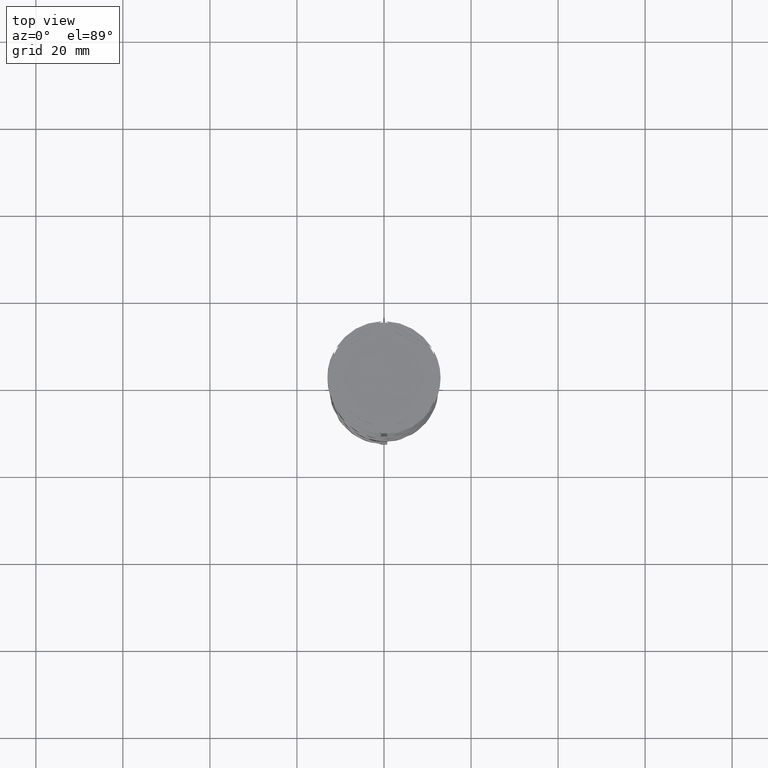
[diagram: clean part render]
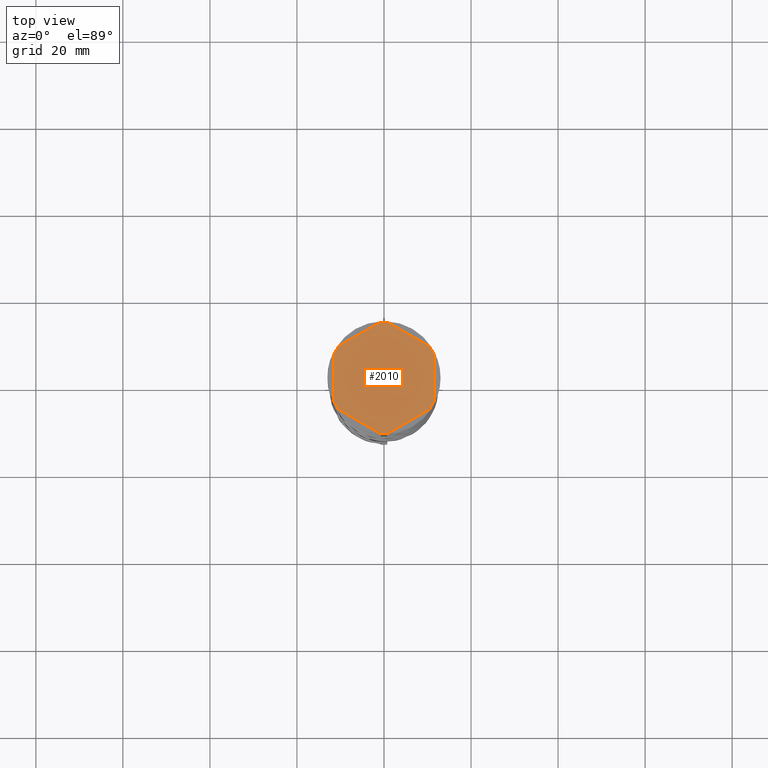
[diagram: same view with one face highlighted and labeled with its STEP entity id]
A machine part, top view. The second image highlights one B-rep face of the part: STEP entity #2010.
In plain terms, the highlighted planar face has unit normal (0, 0, 1).
Its self-contained STEP definition (entity closure, byte-faithful):
#6 = LINE ( 'NONE', #2559, #3145 ) ;
#34 = CARTESIAN_POINT ( 'NONE',  ( 5.612359739892467248E-18, -13.27905619136138959, -1.000000000000000000 ) ) ;
#46 = VERTEX_POINT ( 'NONE', #233 ) ;
#63 = AXIS2_PLACEMENT_3D ( 'NONE', #3797, #3757, #294 ) ;
#97 = EDGE_CURVE ( 'NONE', #1043, #3855, #4139, .T. ) ;
#104 = CARTESIAN_POINT ( 'NONE',  ( 11.49999999999999822, 5.388877434122992582, -1.000000000000000000 ) ) ;
#111 = VECTOR ( 'NONE', #1644, 999.9999999999998863 ) ;
#124 = VECTOR ( 'NONE', #647, 1000.000000000000000 ) ;
#182 = LINE ( 'NONE', #3962, #2127 ) ;
#189 = VECTOR ( 'NONE', #1556, 1000.000000000000000 ) ;
#208 = DIRECTION ( 'NONE',  ( 1.000000000000000000, 0.000000000000000000, 0.000000000000000000 ) ) ;
#218 = DIRECTION ( 'NONE',  ( 1.000000000000000000, -1.776356839400250465E-14, 0.000000000000000000 ) ) ;
#233 = CARTESIAN_POINT ( 'NONE',  ( -10.41690475583121689, 7.264853426459546348, -1.000000000000000000 ) ) ;
#252 = CARTESIAN_POINT ( 'NONE',  ( 10.41690475583121156, 7.264853426459550789, -1.000000000000000000 ) ) ;
#260 = AXIS2_PLACEMENT_3D ( 'NONE', #2072, #1462, #499 ) ;
#280 = VERTEX_POINT ( 'NONE', #1459 ) ;
#291 = CARTESIAN_POINT ( 'NONE',  ( 0.000000000000000000, 0.000000000000000000, -1.000000000000000000 ) ) ;
#293 = ORIENTED_EDGE ( 'NONE', *, *, #2872, .T. ) ;
#294 = DIRECTION ( 'NONE',  ( 1.000000000000000000, 7.105427357601001859E-15, 0.000000000000000000 ) ) ;
#295 = EDGE_LOOP ( 'NONE', ( #2180, #711 ) ) ;
#304 = CARTESIAN_POINT ( 'NONE',  ( -8.089454172900135021, 7.453907108661106840, -1.000000000000000888 ) ) ;
#392 = ORIENTED_EDGE ( 'NONE', *, *, #3455, .F. ) ;
#429 = ORIENTED_EDGE ( 'NONE', *, *, #1276, .F. ) ;
#449 = CIRCLE ( 'NONE', #518, 11.00000000000000000 ) ;
#470 = DIRECTION ( 'NONE',  ( -0.8660254037844384856, 0.5000000000000002220, 0.000000000000000000 ) ) ;
#481 = ORIENTED_EDGE ( 'NONE', *, *, #1780, .F. ) ;
#483 = EDGE_CURVE ( 'NONE', #4098, #874, #1342, .T. ) ;
#491 = AXIS2_PLACEMENT_3D ( 'NONE', #3613, #1410, #2696 ) ;
#499 = DIRECTION ( 'NONE',  ( 1.000000000000000000, 0.000000000000000000, 0.000000000000000000 ) ) ;
#505 = EDGE_LOOP ( 'NONE', ( #1377, #1454 ) ) ;
#518 = AXIS2_PLACEMENT_3D ( 'NONE', #1490, #2148, #1847 ) ;
#551 = CARTESIAN_POINT ( 'NONE',  ( -10.49999999999999822, 6.062177826491068622, -1.000000000000000888 ) ) ;
#571 = CARTESIAN_POINT ( 'NONE',  ( -11.50000000000000000, -6.639528095680696573, -1.000000000000000000 ) ) ;
#578 = CARTESIAN_POINT ( 'NONE',  ( -11.00000000000000000, 0.000000000000000000, -1.000000000000000000 ) ) ;
#615 = DIRECTION ( 'NONE',  ( -1.430775808321104180E-16, -1.000000000000000000, 0.000000000000000000 ) ) ;
#622 = CARTESIAN_POINT ( 'NONE',  ( 10.49999999999999467, 3.278719262151012170, -1.000000000000000888 ) ) ;
#647 = DIRECTION ( 'NONE',  ( 0.000000000000000000, -1.000000000000000000, 0.000000000000000000 ) ) ;
#662 = CIRCLE ( 'NONE', #1190, 11.00000000000000000 ) ;
#666 = EDGE_CURVE ( 'NONE', #3925, #46, #2332, .T. ) ;
#691 = VERTEX_POINT ( 'NONE', #1042 ) ;
#711 = ORIENTED_EDGE ( 'NONE', *, *, #962, .F. ) ;
#721 = CARTESIAN_POINT ( 'NONE',  ( 10.49999999999999467, 6.062177826491072175, -1.000000000000000888 ) ) ;
#732 = CARTESIAN_POINT ( 'NONE',  ( 0.000000000000000000, 13.27905619136138959, -1.000000000000000000 ) ) ;
#761 = DIRECTION ( 'NONE',  ( 0.000000000000000000, 0.000000000000000000, 1.000000000000000000 ) ) ;
#787 = DIRECTION ( 'NONE',  ( -0.000000000000000000, -0.000000000000000000, -1.000000000000000000 ) ) ;
#802 = DIRECTION ( 'NONE',  ( 0.000000000000000000, 0.000000000000000000, 1.000000000000000000 ) ) ;
#823 = DIRECTION ( 'NONE',  ( -0.8660254037844388186, 0.4999999999999997224, 0.000000000000000000 ) ) ;
#831 = VERTEX_POINT ( 'NONE', #2753 ) ;
#860 = VERTEX_POINT ( 'NONE', #2074 ) ;
#874 = VERTEX_POINT ( 'NONE', #104 ) ;
#927 = AXIS2_PLACEMENT_3D ( 'NONE', #1835, #1814, #1902 ) ;
#933 = CARTESIAN_POINT ( 'NONE',  ( 0.000000000000000000, 0.000000000000000000, -1.000000000000000000 ) ) ;
#962 = EDGE_CURVE ( 'NONE', #831, #3766, #2300, .T. ) ;
#966 = ORIENTED_EDGE ( 'NONE', *, *, #483, .T. ) ;
#986 = ORIENTED_EDGE ( 'NONE', *, *, #1450, .F. ) ;
#1019 = CARTESIAN_POINT ( 'NONE',  ( 11.49999999999999822, -5.388877434122996135, -1.000000000000000000 ) ) ;
#1035 = VECTOR ( 'NONE', #2271, 1000.000000000000000 ) ;
#1042 = CARTESIAN_POINT ( 'NONE',  ( 1.083095244168781557, 12.65373086058254160, -1.000000000000000000 ) ) ;
#1043 = VERTEX_POINT ( 'NONE', #3554 ) ;
#1050 = CARTESIAN_POINT ( 'NONE',  ( 11.50000000000000000, 6.639528095680698350, -1.000000000000000000 ) ) ;
#1056 = AXIS2_PLACEMENT_3D ( 'NONE', #4087, #2164, #218 ) ;
#1068 = CARTESIAN_POINT ( 'NONE',  ( -10.49999999999999822, -6.062177826491068622, -1.000000000000000888 ) ) ;
#1071 = CARTESIAN_POINT ( 'NONE',  ( -11.50000000000000000, -5.388877434122992582, -1.000000000000000000 ) ) ;
#1091 = CARTESIAN_POINT ( 'NONE',  ( 10.49999999999999467, -3.278719262151014835, -1.000000000000000888 ) ) ;
#1107 = ORIENTED_EDGE ( 'NONE', *, *, #3934, .F. ) ;
#1133 = LINE ( 'NONE', #1068, #2474 ) ;
#1138 = CARTESIAN_POINT ( 'NONE',  ( 0.000000000000000000, 0.000000000000000000, -1.000000000000000000 ) ) ;
#1144 = EDGE_CURVE ( 'NONE', #2958, #691, #2762, .T. ) ;
#1190 = AXIS2_PLACEMENT_3D ( 'NONE', #2809, #2891, #3163 ) ;
#1220 = EDGE_LOOP ( 'NONE', ( #1905, #2312 ) ) ;
#1276 = EDGE_CURVE ( 'NONE', #3943, #46, #2922, .T. ) ;
#1319 = VERTEX_POINT ( 'NONE', #622 ) ;
#1342 = LINE ( 'NONE', #3232, #1035 ) ;
#1363 = VERTEX_POINT ( 'NONE', #578 ) ;
#1377 = ORIENTED_EDGE ( 'NONE', *, *, #3982, .F. ) ;
#1399 = ORIENTED_EDGE ( 'NONE', *, *, #666, .T. ) ;
#1410 = DIRECTION ( 'NONE',  ( 0.000000000000000000, 0.000000000000000000, 1.000000000000000000 ) ) ;
#1436 = CARTESIAN_POINT ( 'NONE',  ( 0.000000000000000000, 0.000000000000000000, -1.000000000000000000 ) ) ;
#1437 = VECTOR ( 'NONE', #2254, 1000.000000000000114 ) ;
#1450 = EDGE_CURVE ( 'NONE', #2153, #1466, #3108, .T. ) ;
#1454 = ORIENTED_EDGE ( 'NONE', *, *, #1681, .F. ) ;
#1459 = CARTESIAN_POINT ( 'NONE',  ( -2.410545827099876082, -10.73262637081210435, -1.000000000000000888 ) ) ;
#1462 = DIRECTION ( 'NONE',  ( 0.000000000000000000, 0.000000000000000000, 1.000000000000000000 ) ) ;
#1466 = VERTEX_POINT ( 'NONE', #1783 ) ;
#1488 = DIRECTION ( 'NONE',  ( 1.000000000000000000, 0.000000000000000000, 0.000000000000000000 ) ) ;
#1490 = CARTESIAN_POINT ( 'NONE',  ( 0.000000000000000000, 0.000000000000000000, -1.000000000000000000 ) ) ;
#1503 = EDGE_CURVE ( 'NONE', #3685, #3701, #3087, .T. ) ;
#1504 = EDGE_CURVE ( 'NONE', #1466, #1363, #449, .T. ) ;
#1510 = EDGE_LOOP ( 'NONE', ( #966, #1107, #2713, #2926, #1399, #429, #293, #392, #1825, #3048, #3426, #3329 ) ) ;
#1553 = EDGE_CURVE ( 'NONE', #1319, #1591, #3490, .T. ) ;
#1556 = DIRECTION ( 'NONE',  ( 0.000000000000000000, 1.000000000000000000, 0.000000000000000000 ) ) ;
#1564 = FACE_BOUND ( 'NONE', #1220, .T. ) ;
#1585 = FACE_BOUND ( 'NONE', #505, .T. ) ;
#1591 = VERTEX_POINT ( 'NONE', #1091 ) ;
#1617 = VERTEX_POINT ( 'NONE', #1071 ) ;
#1626 = AXIS2_PLACEMENT_3D ( 'NONE', #933, #1879, #2155 ) ;
#1644 = DIRECTION ( 'NONE',  ( 0.8660254037844387076, -0.4999999999999999445, 0.000000000000000000 ) ) ;
#1649 = DIRECTION ( 'NONE',  ( 0.8660254037844385966, 0.5000000000000001110, -0.000000000000000000 ) ) ;
#1681 = EDGE_CURVE ( 'NONE', #860, #2147, #182, .T. ) ;
#1715 = DIRECTION ( 'NONE',  ( -0.8660254037844385966, -0.5000000000000001110, 0.000000000000000000 ) ) ;
#1727 = AXIS2_PLACEMENT_3D ( 'NONE', #2196, #4142, #3160 ) ;
#1754 = DIRECTION ( 'NONE',  ( 1.000000000000000000, 0.000000000000000000, 0.000000000000000000 ) ) ;
#1780 = EDGE_CURVE ( 'NONE', #1363, #2153, #3504, .T. ) ;
#1783 = CARTESIAN_POINT ( 'NONE',  ( -10.49999999999999822, 3.278719262151000624, -1.000000000000000888 ) ) ;
#1785 = VECTOR ( 'NONE', #615, 1000.000000000000000 ) ;
#1792 = DIRECTION ( 'NONE',  ( 1.000000000000000000, 0.000000000000000000, 0.000000000000000000 ) ) ;
#1814 = DIRECTION ( 'NONE',  ( -0.000000000000000000, -0.000000000000000000, -1.000000000000000000 ) ) ;
#1816 = EDGE_CURVE ( 'NONE', #2574, #3818, #3440, .T. ) ;
#1825 = ORIENTED_EDGE ( 'NONE', *, *, #1503, .T. ) ;
#1835 = CARTESIAN_POINT ( 'NONE',  ( 0.000000000000000000, 0.000000000000000000, -1.000000000000000000 ) ) ;
#1847 = DIRECTION ( 'NONE',  ( 1.000000000000000000, 0.000000000000000000, 0.000000000000000000 ) ) ;
#1856 = FACE_BOUND ( 'NONE', #3432, .T. ) ;
#1861 = AXIS2_PLACEMENT_3D ( 'NONE', #1436, #787, #1754 ) ;
#1879 = DIRECTION ( 'NONE',  ( 0.000000000000000000, 0.000000000000000000, 1.000000000000000000 ) ) ;
#1902 = DIRECTION ( 'NONE',  ( 1.000000000000000000, 1.243449787580175325E-14, 0.000000000000000000 ) ) ;
#1905 = ORIENTED_EDGE ( 'NONE', *, *, #2714, .F. ) ;
#1931 = CIRCLE ( 'NONE', #1861, 12.69999999999999929 ) ;
#2010 = ADVANCED_FACE ( 'NONE', ( #2466, #3453, #1585, #1564, #3498, #1856, #4079 ), #2783, .T. ) ;
#2026 = AXIS2_PLACEMENT_3D ( 'NONE', #3346, #761, #1792 ) ;
#2039 = ORIENTED_EDGE ( 'NONE', *, *, #1816, .F. ) ;
#2067 = CIRCLE ( 'NONE', #1056, 12.69999999999999929 ) ;
#2072 = CARTESIAN_POINT ( 'NONE',  ( 0.000000000000000000, 0.000000000000000000, -1.000000000000000000 ) ) ;
#2074 = CARTESIAN_POINT ( 'NONE',  ( 8.089454172900135021, -7.453907108661109504, -1.000000000000000888 ) ) ;
#2127 = VECTOR ( 'NONE', #2671, 999.9999999999998863 ) ;
#2147 = VERTEX_POINT ( 'NONE', #2711 ) ;
#2148 = DIRECTION ( 'NONE',  ( 0.000000000000000000, 0.000000000000000000, 1.000000000000000000 ) ) ;
#2153 = VERTEX_POINT ( 'NONE', #3312 ) ;
#2154 = DIRECTION ( 'NONE',  ( 1.000000000000000000, 0.000000000000000000, 0.000000000000000000 ) ) ;
#2155 = DIRECTION ( 'NONE',  ( 1.000000000000000000, 0.000000000000000000, -0.000000000000000000 ) ) ;
#2164 = DIRECTION ( 'NONE',  ( -0.000000000000000000, -0.000000000000000000, -1.000000000000000000 ) ) ;
#2180 = ORIENTED_EDGE ( 'NONE', *, *, #2895, .F. ) ;
#2190 = AXIS2_PLACEMENT_3D ( 'NONE', #291, #4099, #2154 ) ;
#2196 = CARTESIAN_POINT ( 'NONE',  ( 0.000000000000000000, 0.000000000000000000, -1.000000000000000000 ) ) ;
#2254 = DIRECTION ( 'NONE',  ( 0.8660254037844385966, 0.4999999999999999445, 0.000000000000000000 ) ) ;
#2260 = ORIENTED_EDGE ( 'NONE', *, *, #1553, .F. ) ;
#2271 = DIRECTION ( 'NONE',  ( 1.306360520641008153E-16, 1.000000000000000000, 0.000000000000000000 ) ) ;
#2300 = LINE ( 'NONE', #721, #111 ) ;
#2312 = ORIENTED_EDGE ( 'NONE', *, *, #3774, .F. ) ;
#2332 = LINE ( 'NONE', #732, #2381 ) ;
#2337 = CIRCLE ( 'NONE', #1727, 12.69999999999999929 ) ;
#2346 = ORIENTED_EDGE ( 'NONE', *, *, #4121, .F. ) ;
#2381 = VECTOR ( 'NONE', #1715, 1000.000000000000114 ) ;
#2386 = VECTOR ( 'NONE', #3728, 1000.000000000000227 ) ;
#2413 = ORIENTED_EDGE ( 'NONE', *, *, #3294, .F. ) ;
#2466 = FACE_BOUND ( 'NONE', #295, .T. ) ;
#2474 = VECTOR ( 'NONE', #470, 1000.000000000000000 ) ;
#2559 = CARTESIAN_POINT ( 'NONE',  ( -1.734723475976807094E-15, 12.12435565298214080, -1.000000000000000888 ) ) ;
#2574 = VERTEX_POINT ( 'NONE', #3191 ) ;
#2647 = EDGE_LOOP ( 'NONE', ( #2948, #986, #481 ) ) ;
#2671 = DIRECTION ( 'NONE',  ( -0.8660254037844387076, -0.4999999999999999445, 0.000000000000000000 ) ) ;
#2696 = DIRECTION ( 'NONE',  ( 1.000000000000000000, 0.000000000000000000, 0.000000000000000000 ) ) ;
#2711 = CARTESIAN_POINT ( 'NONE',  ( 2.410545827099865868, -10.73262637081210791, -1.000000000000000888 ) ) ;
#2713 = ORIENTED_EDGE ( 'NONE', *, *, #1144, .T. ) ;
#2714 = EDGE_CURVE ( 'NONE', #3802, #280, #2808, .T. ) ;
#2753 = CARTESIAN_POINT ( 'NONE',  ( 2.410545827099861871, 10.73262637081210791, -1.000000000000000888 ) ) ;
#2754 = EDGE_LOOP ( 'NONE', ( #2413, #2260 ) ) ;
#2762 = LINE ( 'NONE', #1050, #3985 ) ;
#2773 = CARTESIAN_POINT ( 'NONE',  ( -11.50000000000000000, 5.388877434122992582, -1.000000000000000000 ) ) ;
#2783 = PLANE ( 'NONE',  #1626 ) ;
#2792 = CARTESIAN_POINT ( 'NONE',  ( 0.000000000000000000, 0.000000000000000000, -1.000000000000000000 ) ) ;
#2793 = EDGE_CURVE ( 'NONE', #1043, #3701, #1931, .T. ) ;
#2808 = CIRCLE ( 'NONE', #260, 11.00000000000000000 ) ;
#2809 = CARTESIAN_POINT ( 'NONE',  ( 0.000000000000000000, 0.000000000000000000, -1.000000000000000000 ) ) ;
#2851 = LINE ( 'NONE', #2874, #124 ) ;
#2872 = EDGE_CURVE ( 'NONE', #3943, #1617, #2851, .T. ) ;
#2874 = CARTESIAN_POINT ( 'NONE',  ( -11.50000000000000000, 6.639528095680691244, -1.000000000000000000 ) ) ;
#2891 = DIRECTION ( 'NONE',  ( 0.000000000000000000, 0.000000000000000000, 1.000000000000000000 ) ) ;
#2895 = EDGE_CURVE ( 'NONE', #3766, #831, #662, .T. ) ;
#2922 = CIRCLE ( 'NONE', #2190, 12.69999999999999929 ) ;
#2926 = ORIENTED_EDGE ( 'NONE', *, *, #3486, .F. ) ;
#2935 = CIRCLE ( 'NONE', #927, 12.69999999999999929 ) ;
#2948 = ORIENTED_EDGE ( 'NONE', *, *, #1504, .F. ) ;
#2958 = VERTEX_POINT ( 'NONE', #252 ) ;
#3048 = ORIENTED_EDGE ( 'NONE', *, *, #2793, .F. ) ;
#3087 = LINE ( 'NONE', #571, #2386 ) ;
#3105 = CARTESIAN_POINT ( 'NONE',  ( 10.41690475583121867, -7.264853426459537467, -1.000000000000000000 ) ) ;
#3108 = LINE ( 'NONE', #551, #189 ) ;
#3145 = VECTOR ( 'NONE', #1649, 1000.000000000000000 ) ;
#3160 = DIRECTION ( 'NONE',  ( 1.000000000000000000, 0.000000000000000000, 0.000000000000000000 ) ) ;
#3163 = DIRECTION ( 'NONE',  ( 1.000000000000000000, 0.000000000000000000, 0.000000000000000000 ) ) ;
#3191 = CARTESIAN_POINT ( 'NONE',  ( -2.410545827099867200, 10.73262637081210613, -1.000000000000000888 ) ) ;
#3199 = CARTESIAN_POINT ( 'NONE',  ( -10.41690475583121334, -7.264853426459548125, -1.000000000000000000 ) ) ;
#3232 = CARTESIAN_POINT ( 'NONE',  ( 11.49999999999999822, -6.639528095680694797, -1.000000000000000000 ) ) ;
#3294 = EDGE_CURVE ( 'NONE', #1591, #1319, #3597, .T. ) ;
#3312 = CARTESIAN_POINT ( 'NONE',  ( -10.49999999999999822, -3.278719262151000624, -1.000000000000000888 ) ) ;
#3329 = ORIENTED_EDGE ( 'NONE', *, *, #3400, .F. ) ;
#3344 = CIRCLE ( 'NONE', #3482, 11.00000000000000000 ) ;
#3346 = CARTESIAN_POINT ( 'NONE',  ( 0.000000000000000000, 0.000000000000000000, -1.000000000000000000 ) ) ;
#3399 = DIRECTION ( 'NONE',  ( 0.000000000000000000, 0.000000000000000000, 1.000000000000000000 ) ) ;
#3400 = EDGE_CURVE ( 'NONE', #4098, #3855, #2337, .T. ) ;
#3426 = ORIENTED_EDGE ( 'NONE', *, *, #97, .T. ) ;
#3432 = EDGE_LOOP ( 'NONE', ( #2039, #2346 ) ) ;
#3440 = CIRCLE ( 'NONE', #2026, 11.00000000000000000 ) ;
#3453 = FACE_BOUND ( 'NONE', #2754, .T. ) ;
#3455 = EDGE_CURVE ( 'NONE', #3685, #1617, #4078, .T. ) ;
#3482 = AXIS2_PLACEMENT_3D ( 'NONE', #2792, #3399, #1488 ) ;
#3485 = CARTESIAN_POINT ( 'NONE',  ( -1.083095244168783333, 12.65373086058254160, -1.000000000000000000 ) ) ;
#3486 = EDGE_CURVE ( 'NONE', #3925, #691, #2935, .T. ) ;
#3490 = LINE ( 'NONE', #4132, #1785 ) ;
#3498 = FACE_BOUND ( 'NONE', #2647, .T. ) ;
#3504 = CIRCLE ( 'NONE', #491, 11.00000000000000000 ) ;
#3554 = CARTESIAN_POINT ( 'NONE',  ( 1.083095244168774673, -12.65373086058253982, -1.000000000000000000 ) ) ;
#3597 = CIRCLE ( 'NONE', #3867, 11.00000000000000000 ) ;
#3613 = CARTESIAN_POINT ( 'NONE',  ( 0.000000000000000000, 0.000000000000000000, -1.000000000000000000 ) ) ;
#3667 = CARTESIAN_POINT ( 'NONE',  ( -8.089454172900133244, -7.453907108661111280, -1.000000000000000888 ) ) ;
#3685 = VERTEX_POINT ( 'NONE', #3199 ) ;
#3701 = VERTEX_POINT ( 'NONE', #3841 ) ;
#3728 = DIRECTION ( 'NONE',  ( 0.8660254037844387076, -0.4999999999999997780, 0.000000000000000000 ) ) ;
#3757 = DIRECTION ( 'NONE',  ( -0.000000000000000000, -0.000000000000000000, -1.000000000000000000 ) ) ;
#3766 = VERTEX_POINT ( 'NONE', #3979 ) ;
#3774 = EDGE_CURVE ( 'NONE', #280, #3802, #1133, .T. ) ;
#3797 = CARTESIAN_POINT ( 'NONE',  ( 0.000000000000000000, 0.000000000000000000, -1.000000000000000000 ) ) ;
#3802 = VERTEX_POINT ( 'NONE', #3667 ) ;
#3818 = VERTEX_POINT ( 'NONE', #304 ) ;
#3841 = CARTESIAN_POINT ( 'NONE',  ( -1.083095244168779780, -12.65373086058253982, -1.000000000000000000 ) ) ;
#3855 = VERTEX_POINT ( 'NONE', #3105 ) ;
#3867 = AXIS2_PLACEMENT_3D ( 'NONE', #1138, #802, #208 ) ;
#3925 = VERTEX_POINT ( 'NONE', #3485 ) ;
#3934 = EDGE_CURVE ( 'NONE', #2958, #874, #2067, .T. ) ;
#3943 = VERTEX_POINT ( 'NONE', #2773 ) ;
#3962 = CARTESIAN_POINT ( 'NONE',  ( -2.602085213965210642E-15, -12.12435565298214080, -1.000000000000000888 ) ) ;
#3979 = CARTESIAN_POINT ( 'NONE',  ( 8.089454172900138573, 7.453907108661105063, -1.000000000000000888 ) ) ;
#3982 = EDGE_CURVE ( 'NONE', #2147, #860, #3344, .T. ) ;
#3985 = VECTOR ( 'NONE', #823, 1000.000000000000000 ) ;
#4078 = CIRCLE ( 'NONE', #63, 12.69999999999999929 ) ;
#4079 = FACE_OUTER_BOUND ( 'NONE', #1510, .T. ) ;
#4087 = CARTESIAN_POINT ( 'NONE',  ( 0.000000000000000000, 0.000000000000000000, -1.000000000000000000 ) ) ;
#4098 = VERTEX_POINT ( 'NONE', #1019 ) ;
#4099 = DIRECTION ( 'NONE',  ( -0.000000000000000000, -0.000000000000000000, -1.000000000000000000 ) ) ;
#4121 = EDGE_CURVE ( 'NONE', #3818, #2574, #6, .T. ) ;
#4132 = CARTESIAN_POINT ( 'NONE',  ( 10.49999999999999289, -6.062177826491073063, -1.000000000000000888 ) ) ;
#4139 = LINE ( 'NONE', #34, #1437 ) ;
#4142 = DIRECTION ( 'NONE',  ( -0.000000000000000000, -0.000000000000000000, -1.000000000000000000 ) ) ;